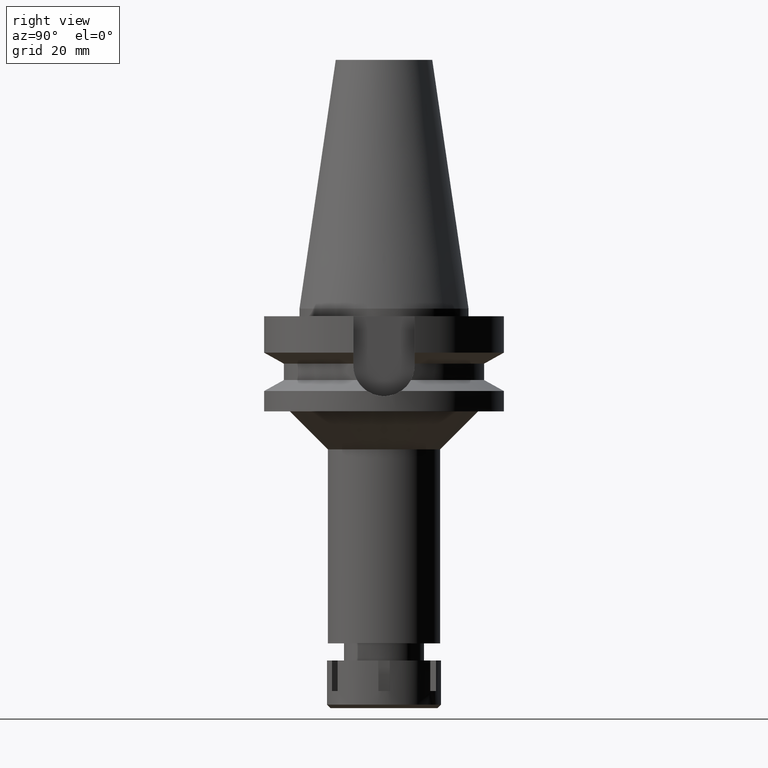
[diagram: clean part render]
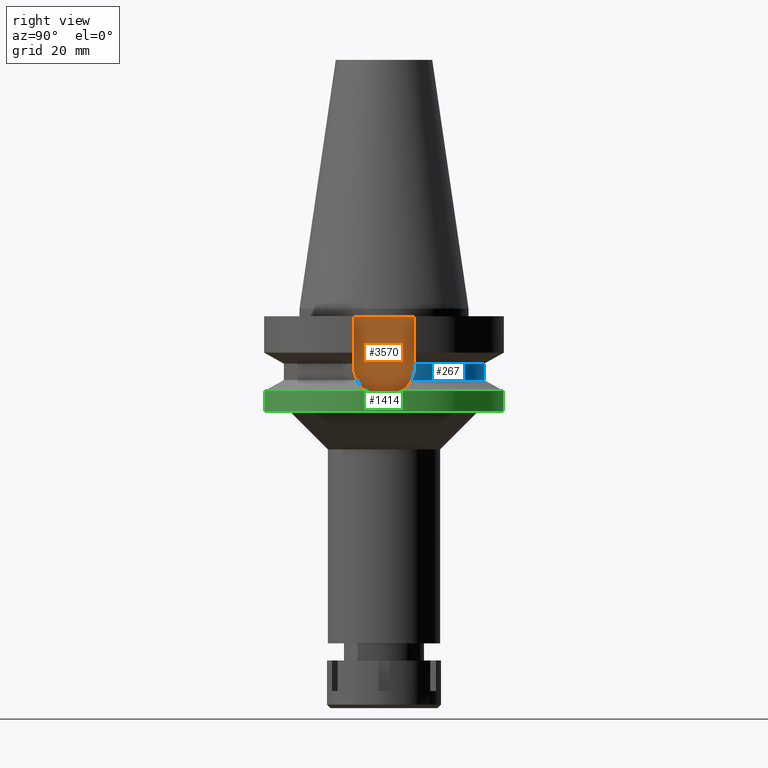
[diagram: same view with three faces highlighted in distinct colors, each labeled with its STEP entity id]
A machine part, right view with three faces highlighted in distinct colors.
Their STEP definitions:

[orange] entity #3570 — the highlighted planar face has unit normal (1, 0, 0).
#12 = EDGE_CURVE ( 'NONE', #867, #642, #2230, .T. ) ;
#53 = VECTOR ( 'NONE', #2480, 1000.000000000000000 ) ;
#88 = CARTESIAN_POINT ( 'NONE',  ( 22.50000000000000000, -8.050000000000000711, -14.94999999999999929 ) ) ;
#299 = LINE ( 'NONE', #807, #348 ) ;
#318 = VERTEX_POINT ( 'NONE', #634 ) ;
#348 = VECTOR ( 'NONE', #1065, 1000.000000000000000 ) ;
#351 = ORIENTED_EDGE ( 'NONE', *, *, #12, .F. ) ;
#498 = ORIENTED_EDGE ( 'NONE', *, *, #3123, .F. ) ;
#528 = EDGE_CURVE ( 'NONE', #642, #318, #2919, .T. ) ;
#634 = CARTESIAN_POINT ( 'NONE',  ( 22.50000000000000000, -8.050000000000000711, -2.000000000000000000 ) ) ;
#642 = VERTEX_POINT ( 'NONE', #88 ) ;
#690 = PLANE ( 'NONE',  #992 ) ;
#807 = CARTESIAN_POINT ( 'NONE',  ( 22.50000000000000000, 8.050000000000000711, -2.000000000000000000 ) ) ;
#867 = VERTEX_POINT ( 'NONE', #1381 ) ;
#992 = AXIS2_PLACEMENT_3D ( 'NONE', #1816, #2940, #1546 ) ;
#1065 = DIRECTION ( 'NONE',  ( 0.0000000000000000000, -1.000000000000000000, 0.0000000000000000000 ) ) ;
#1204 = DIRECTION ( 'NONE',  ( 0.0000000000000000000, 0.0000000000000000000, 1.000000000000000000 ) ) ;
#1299 = VECTOR ( 'NONE', #1204, 1000.000000000000000 ) ;
#1381 = CARTESIAN_POINT ( 'NONE',  ( 22.50000000000000000, 8.050000000000000711, -14.94999999999999929 ) ) ;
#1546 = DIRECTION ( 'NONE',  ( 0.0000000000000000000, 1.000000000000000000, 0.0000000000000000000 ) ) ;
#1573 = ORIENTED_EDGE ( 'NONE', *, *, #528, .F. ) ;
#1801 = VERTEX_POINT ( 'NONE', #3059 ) ;
#1816 = CARTESIAN_POINT ( 'NONE',  ( 22.50000000000000000, 0.0000000000000000000, 0.0000000000000000000 ) ) ;
#1955 = CARTESIAN_POINT ( 'NONE',  ( 22.50000000000000000, 8.050000000000000711, -2.000000000000000000 ) ) ;
#2230 = CIRCLE ( 'NONE', #3127, 8.050000000000000711 ) ;
#2480 = DIRECTION ( 'NONE',  ( 0.0000000000000000000, 0.0000000000000000000, -1.000000000000000000 ) ) ;
#2542 = DIRECTION ( 'NONE',  ( -1.000000000000000000, 0.0000000000000000000, 0.0000000000000000000 ) ) ;
#2631 = EDGE_CURVE ( 'NONE', #1801, #318, #299, .T. ) ;
#2754 = EDGE_LOOP ( 'NONE', ( #1573, #351, #498, #2992 ) ) ;
#2813 = CARTESIAN_POINT ( 'NONE',  ( 22.50000000000000000, 0.0000000000000000000, -14.94999999999999929 ) ) ;
#2919 = LINE ( 'NONE', #3198, #1299 ) ;
#2940 = DIRECTION ( 'NONE',  ( 1.000000000000000000, 0.0000000000000000000, 0.0000000000000000000 ) ) ;
#2992 = ORIENTED_EDGE ( 'NONE', *, *, #2631, .T. ) ;
#3059 = CARTESIAN_POINT ( 'NONE',  ( 22.50000000000000000, 8.050000000000000711, -2.000000000000000000 ) ) ;
#3123 = EDGE_CURVE ( 'NONE', #1801, #867, #3312, .T. ) ;
#3127 = AXIS2_PLACEMENT_3D ( 'NONE', #2813, #2542, #3390 ) ;
#3198 = CARTESIAN_POINT ( 'NONE',  ( 22.50000000000000000, -8.050000000000000711, -14.94999999999999929 ) ) ;
#3312 = LINE ( 'NONE', #1955, #53 ) ;
#3390 = DIRECTION ( 'NONE',  ( 0.0000000000000000000, 1.000000000000000000, 0.0000000000000000000 ) ) ;
#3566 = FACE_OUTER_BOUND ( 'NONE', #2754, .T. ) ;
#3570 = ADVANCED_FACE ( 'NONE', ( #3566 ), #690, .T. ) ;

[blue] entity #267 — the highlighted cylindrical surface (partial cylindrical patch) has radius 26.5 mm, axis along (0, 0, -1).
#39 = CARTESIAN_POINT ( 'NONE',  ( 25.48480653792046624, 7.266729367422243513, -18.43213561436577308 ) ) ;
#45 = CARTESIAN_POINT ( 'NONE',  ( 0.0000000000000000000, 2.125619449279999982E-14, 73.56999999999999318 ) ) ;
#51 = AXIS2_PLACEMENT_3D ( 'NONE', #2305, #358, #2324 ) ;
#267 = ADVANCED_FACE ( 'NONE', ( #3119 ), #323, .T. ) ;
#278 = CARTESIAN_POINT ( 'NONE',  ( 25.24772266958000344, 8.050000000000000711, -14.94999999999999929 ) ) ;
#323 = CYLINDRICAL_SURFACE ( 'NONE', #2364, 26.50000000000000000 ) ;
#337 = CARTESIAN_POINT ( 'NONE',  ( -25.30215890781839860, 7.877570599496780623, -16.61088255778458844 ) ) ;
#355 = CARTESIAN_POINT ( 'NONE',  ( -25.32122245610151978, 7.815962707354739969, -16.87706809355950455 ) ) ;
#358 = DIRECTION ( 'NONE',  ( 0.0000000000000000000, 0.0000000000000000000, 1.000000000000000000 ) ) ;
#373 = VERTEX_POINT ( 'NONE', #3339 ) ;
#376 = CARTESIAN_POINT ( 'NONE',  ( -25.53175183775000079, 7.097862220092999941, -18.74774300138999905 ) ) ;
#389 = CARTESIAN_POINT ( 'NONE',  ( -25.31652402624242981, 7.831177078178416906, -16.81429685341538516 ) ) ;
#541 = EDGE_CURVE ( 'NONE', #373, #3369, #2864, .T. ) ;
#564 = ORIENTED_EDGE ( 'NONE', *, *, #1587, .F. ) ;
#581 = CARTESIAN_POINT ( 'NONE',  ( -25.24772266958000344, 8.050000000000000711, -14.94999999999999929 ) ) ;
#605 = CARTESIAN_POINT ( 'NONE',  ( -25.24772266958000344, 8.050000000000000711, -14.94999999999999929 ) ) ;
#610 = DIRECTION ( 'NONE',  ( -1.015526327460011900E-06, -3.185061107252040006E-06, -0.9999999999944120255 ) ) ;
#623 = CARTESIAN_POINT ( 'NONE',  ( -25.25396625246038695, 8.030896711159567047, -15.59378553532208755 ) ) ;
#626 = CARTESIAN_POINT ( 'NONE',  ( 25.44390410195637742, 7.408324269918076688, -18.11690676764972352 ) ) ;
#647 = CARTESIAN_POINT ( 'NONE',  ( 25.33288843118665312, 7.778112047386424699, -17.02510900864709598 ) ) ;
#705 = DIRECTION ( 'NONE',  ( 2.937377103435145477E-06, -9.212686868436449096E-06, 0.9999999999532491746 ) ) ;
#719 = CARTESIAN_POINT ( 'NONE',  ( 25.24772266958000344, 8.050000000000000711, -14.94999999999999929 ) ) ;
#788 = ORIENTED_EDGE ( 'NONE', *, *, #541, .F. ) ;
#922 = CARTESIAN_POINT ( 'NONE',  ( -25.31954826170012751, 7.821386849067262226, -16.85495274079940486 ) ) ;
#1002 = EDGE_CURVE ( 'NONE', #3369, #2240, #2927, .T. ) ;
#1096 = AXIS2_PLACEMENT_3D ( 'NONE', #2029, #1205, #1243 ) ;
#1165 = DIRECTION ( 'NONE',  ( 0.0000000000000000000, 0.0000000000000000000, -1.000000000000000000 ) ) ;
#1184 = VECTOR ( 'NONE', #610, 1000.000000000000000 ) ;
#1205 = DIRECTION ( 'NONE',  ( 0.0000000000000000000, 0.0000000000000000000, -1.000000000000000000 ) ) ;
#1243 = DIRECTION ( 'NONE',  ( -0.9527442516822307583, 0.3037735849057093818, 0.0000000000000000000 ) ) ;
#1275 = DIRECTION ( 'NONE',  ( 0.0000000000000000000, -1.000000000000000000, 0.0000000000000000000 ) ) ;
#1325 = LINE ( 'NONE', #1845, #2613 ) ;
#1331 = CIRCLE ( 'NONE', #1096, 26.50000000000000711 ) ;
#1403 = CARTESIAN_POINT ( 'NONE',  ( 25.24772413154000006, 8.049995414772000757, -14.45229203572999843 ) ) ;
#1437 = B_SPLINE_CURVE_WITH_KNOTS ( 'NONE', 3,
 ( #2564, #39, #626, #1755, #2880, #3459, #3176, #647, #3260, #2429, #2145, #1600, #2163, #719 ),
 .UNSPECIFIED., .F., .F.,
 ( 4, 2, 2, 1, 1, 2, 2, 4 ),
 ( 0.0000000000000000000, 0.2500000000000011657, 0.3750000000000028311, 0.4375000000000037748, 0.4687500000000027756, 0.4843750000000024425, 0.5000000000000019984, 1.000000000000000000 ),
 .UNSPECIFIED. ) ;
#1445 = ORIENTED_EDGE ( 'NONE', *, *, #2359, .T. ) ;
#1464 = CARTESIAN_POINT ( 'NONE',  ( -25.27269700110156236, 7.971767412699268363, -16.08147680843536520 ) ) ;
#1587 = EDGE_CURVE ( 'NONE', #2704, #2652, #1325, .T. ) ;
#1600 = CARTESIAN_POINT ( 'NONE',  ( 25.27267991477270215, 7.973333693868347005, -16.24500092433180498 ) ) ;
#1755 = CARTESIAN_POINT ( 'NONE',  ( 25.39161474380841099, 7.584925632688388042, -17.65165132602217213 ) ) ;
#1845 = CARTESIAN_POINT ( 'NONE',  ( 25.24772266958000344, 8.050000000000000711, -14.94999999999999929 ) ) ;
#1916 = EDGE_CURVE ( 'NONE', #373, #2652, #1331, .T. ) ;
#2029 = CARTESIAN_POINT ( 'NONE',  ( 0.0000000000000000000, 1.065333950388000029E-14, -14.45225699861000024 ) ) ;
#2038 = CARTESIAN_POINT ( 'NONE',  ( 25.53175183775000079, 7.097862220092999941, -18.74774300138999905 ) ) ;
#2063 = CARTESIAN_POINT ( 'NONE',  ( -25.43789037939440334, 7.435491690444283819, -18.11672414067871273 ) ) ;
#2145 = CARTESIAN_POINT ( 'NONE',  ( 25.32415423298265722, 7.806459850231466824, -16.91522840168126152 ) ) ;
#2163 = CARTESIAN_POINT ( 'NONE',  ( 25.24772266958000344, 8.049999999999997158, -15.58981081119148193 ) ) ;
#2240 = VERTEX_POINT ( 'NONE', #3317 ) ;
#2305 = CARTESIAN_POINT ( 'NONE',  ( 0.0000000000000000000, 0.0000000000000000000, -18.74774300138999905 ) ) ;
#2323 = CARTESIAN_POINT ( 'NONE',  ( -25.28050147970205330, 7.946982733722296466, -16.24437200643366097 ) ) ;
#2324 = DIRECTION ( 'NONE',  ( 0.0000000000000000000, 1.000000000000000000, 0.0000000000000000000 ) ) ;
#2359 = EDGE_CURVE ( 'NONE', #3350, #2240, #2746, .T. ) ;
#2364 = AXIS2_PLACEMENT_3D ( 'NONE', #45, #1165, #1275 ) ;
#2429 = CARTESIAN_POINT ( 'NONE',  ( 25.32546474064105979, 7.802209548897429237, -16.93201787082077203 ) ) ;
#2564 = CARTESIAN_POINT ( 'NONE',  ( 25.53175183775000079, 7.097862220092999941, -18.74774300138999905 ) ) ;
#2613 = VECTOR ( 'NONE', #705, 1000.000000000000114 ) ;
#2621 = ORIENTED_EDGE ( 'NONE', *, *, #2868, .F. ) ;
#2652 = VERTEX_POINT ( 'NONE', #1403 ) ;
#2704 = VERTEX_POINT ( 'NONE', #278 ) ;
#2746 = CIRCLE ( 'NONE', #51, 26.50000000000000000 ) ;
#2791 = ORIENTED_EDGE ( 'NONE', *, *, #1002, .F. ) ;
#2864 = LINE ( 'NONE', #3142, #1184 ) ;
#2868 = EDGE_CURVE ( 'NONE', #3350, #2704, #1437, .T. ) ;
#2876 = CARTESIAN_POINT ( 'NONE',  ( -25.29454954118293486, 7.902007388337063176, -16.48871296866783354 ) ) ;
#2880 = CARTESIAN_POINT ( 'NONE',  ( 25.37569567372544910, 7.637836187999782922, -17.49781209657168191 ) ) ;
#2927 = B_SPLINE_CURVE_WITH_KNOTS ( 'NONE', 3,
 ( #605, #3156, #623, #1464, #2323, #2876, #337, #3456, #389, #922, #355, #3473, #2063, #376 ),
 .UNSPECIFIED., .F., .F.,
 ( 4, 2, 2, 1, 1, 2, 2, 4 ),
 ( 0.0000000000000000000, 0.2499999999999942268, 0.3749999999999912292, 0.4374999999999910072, 0.4687499999999909517, 0.4843749999999907851, 0.4999999999999906741, 1.000000000000000000 ),
 .UNSPECIFIED. ) ;
#2990 = EDGE_LOOP ( 'NONE', ( #3574, #564, #2621, #1445, #2791, #788 ) ) ;
#3119 = FACE_OUTER_BOUND ( 'NONE', #2990, .T. ) ;
#3142 = CARTESIAN_POINT ( 'NONE',  ( -25.24772216410000070, 8.050001585380000435, -14.45224488490999981 ) ) ;
#3156 = CARTESIAN_POINT ( 'NONE',  ( -25.24772266958000699, 8.050000000000018474, -15.27000344023669420 ) ) ;
#3176 = CARTESIAN_POINT ( 'NONE',  ( 25.34384339545047737, 7.742469616379023201, -17.15619314850085431 ) ) ;
#3260 = CARTESIAN_POINT ( 'NONE',  ( 25.32840589093493122, 7.792665650289850809, -16.96921537928767165 ) ) ;
#3317 = CARTESIAN_POINT ( 'NONE',  ( -25.53175183775000079, 7.097862220092999941, -18.74774300138999905 ) ) ;
#3339 = CARTESIAN_POINT ( 'NONE',  ( -25.24772216410000070, 8.050001585380000435, -14.45224488490999981 ) ) ;
#3350 = VERTEX_POINT ( 'NONE', #2038 ) ;
#3369 = VERTEX_POINT ( 'NONE', #581 ) ;
#3456 = CARTESIAN_POINT ( 'NONE',  ( -25.31206084004277557, 7.845614529398870829, -16.75329855851926908 ) ) ;
#3459 = CARTESIAN_POINT ( 'NONE',  ( 25.35408314255054663, 7.708964442631086378, -17.26963666352914117 ) ) ;
#3473 = CARTESIAN_POINT ( 'NONE',  ( -25.36818832152595959, 7.663695285297998261, -17.48840541843554419 ) ) ;
#3574 = ORIENTED_EDGE ( 'NONE', *, *, #1916, .T. ) ;

[green] entity #1414 — the highlighted cylindrical surface (partial cylindrical patch) has radius 31.5 mm, axis along (0, 0, -1).
#10 = EDGE_CURVE ( 'NONE', #954, #3477, #525, .T. ) ;
#81 = ORIENTED_EDGE ( 'NONE', *, *, #854, .F. ) ;
#218 = CARTESIAN_POINT ( 'NONE',  ( 31.41519654756640278, 2.308329250101830432, -22.66195675239377039 ) ) ;
#272 = DIRECTION ( 'NONE',  ( 0.9898094849552905306, -0.1423979757318985240, 0.0000000000000000000 ) ) ;
#290 = CARTESIAN_POINT ( 'NONE',  ( 31.17899877608999759, 4.485536235554000051, -21.63449434733000132 ) ) ;
#295 = CARTESIAN_POINT ( 'NONE',  ( 31.47113333814916558, 1.356640495605542007, -22.88731189953729128 ) ) ;
#297 = VERTEX_POINT ( 'NONE', #1019 ) ;
#309 = FACE_OUTER_BOUND ( 'NONE', #2872, .T. ) ;
#396 = EDGE_CURVE ( 'NONE', #3477, #2075, #3400, .T. ) ;
#412 = AXIS2_PLACEMENT_3D ( 'NONE', #906, #1708, #272 ) ;
#482 = VERTEX_POINT ( 'NONE', #1966 ) ;
#504 = CARTESIAN_POINT ( 'NONE',  ( 31.40782472142544890, -2.406637570769966761, -22.63189169568958548 ) ) ;
#517 = CARTESIAN_POINT ( 'NONE',  ( 0.0000000000000000000, 0.0000000000000000000, -21.63449434733000132 ) ) ;
#525 = CIRCLE ( 'NONE', #412, 31.50000000000001421 ) ;
#546 = CARTESIAN_POINT ( 'NONE',  ( 31.37855930989746156, -2.761990093287100212, -22.51192666843388324 ) ) ;
#561 = CARTESIAN_POINT ( 'NONE',  ( 31.41418307691818512, 2.322078179483369365, -22.65782554032321983 ) ) ;
#785 = ORIENTED_EDGE ( 'NONE', *, *, #817, .F. ) ;
#786 = CARTESIAN_POINT ( 'NONE',  ( 31.27811616779987247, -3.746663409866644923, -22.08609477308995750 ) ) ;
#803 = CARTESIAN_POINT ( 'NONE',  ( 31.43707934141286842, 1.991785373662814385, -22.75083979999427086 ) ) ;
#817 = EDGE_CURVE ( 'NONE', #954, #482, #2667, .T. ) ;
#854 = EDGE_CURVE ( 'NONE', #482, #3155, #2438, .T. ) ;
#856 = DIRECTION ( 'NONE',  ( 0.0000000000000000000, -1.105773104655000034E-13, -1.000000000000000000 ) ) ;
#880 = DIRECTION ( 'NONE',  ( 0.0000000000000000000, -1.000000000000000000, 0.0000000000000000000 ) ) ;
#886 = VERTEX_POINT ( 'NONE', #1094 ) ;
#906 = CARTESIAN_POINT ( 'NONE',  ( 0.0000000000000000000, 0.0000000000000000000, -21.63449434733000132 ) ) ;
#954 = VERTEX_POINT ( 'NONE', #3393 ) ;
#983 = CARTESIAN_POINT ( 'NONE',  ( 0.0000000000000000000, -31.50000000000000000, -21.63449434733000132 ) ) ;
#1019 = CARTESIAN_POINT ( 'NONE',  ( 0.0000000000000000000, 31.50000000000000000, -21.63449434733000132 ) ) ;
#1043 = ORIENTED_EDGE ( 'NONE', *, *, #10, .T. ) ;
#1060 = CARTESIAN_POINT ( 'NONE',  ( 31.33671814116611287, -3.204274407353942866, -22.33747821328194405 ) ) ;
#1076 = CARTESIAN_POINT ( 'NONE',  ( 31.41697254242929205, 2.284015593790098997, -22.66919255136125244 ) ) ;
#1094 = CARTESIAN_POINT ( 'NONE',  ( 0.0000000000000000000, 31.50000000000000000, -27.00000000000000000 ) ) ;
#1366 = CARTESIAN_POINT ( 'NONE',  ( 31.41961539192766040, 2.247536052679425023, -22.67995511561028721 ) ) ;
#1414 = ADVANCED_FACE ( 'NONE', ( #309 ), #2273, .T. ) ;
#1425 = CARTESIAN_POINT ( 'NONE',  ( 31.49278356123979350, 0.7711873033137145450, -22.97267690005150342 ) ) ;
#1434 = CARTESIAN_POINT ( 'NONE',  ( 0.0000000000000000000, 2.125619449279999982E-14, -27.00000000000000000 ) ) ;
#1473 = DIRECTION ( 'NONE',  ( 0.0000000000000000000, 0.0000000000000000000, -1.000000000000000000 ) ) ;
#1532 = CIRCLE ( 'NONE', #2352, 31.50000000000000000 ) ;
#1583 = EDGE_CURVE ( 'NONE', #297, #886, #1606, .T. ) ;
#1590 = CARTESIAN_POINT ( 'NONE',  ( 0.0000000000000000000, 31.50000000000000000, -21.63449434733000132 ) ) ;
#1606 = LINE ( 'NONE', #1590, #3500 ) ;
#1616 = CARTESIAN_POINT ( 'NONE',  ( 31.41023747458456583, -2.374835805079123840, -22.64173436499367043 ) ) ;
#1635 = CARTESIAN_POINT ( 'NONE',  ( 31.50000030226999925, -0.7652255573043680315, -23.00000000000000000 ) ) ;
#1659 = CARTESIAN_POINT ( 'NONE',  ( 31.46211241186140484, 1.552211430492609123, -22.85146869859348229 ) ) ;
#1708 = DIRECTION ( 'NONE',  ( 0.0000000000000000000, 0.0000000000000000000, -1.000000000000000000 ) ) ;
#1825 = CARTESIAN_POINT ( 'NONE',  ( 0.0000000000000000000, -31.50000000000000000, -27.00000000000000000 ) ) ;
#1847 = EDGE_CURVE ( 'NONE', #2075, #886, #2210, .T. ) ;
#1888 = ORIENTED_EDGE ( 'NONE', *, *, #1583, .F. ) ;
#1894 = CARTESIAN_POINT ( 'NONE',  ( 31.17899877608999759, -4.485536235554000051, -21.63449434733000132 ) ) ;
#1908 = CARTESIAN_POINT ( 'NONE',  ( 31.40205153632907198, -2.481143929156545802, -22.60832449611487860 ) ) ;
#1925 = CARTESIAN_POINT ( 'NONE',  ( 31.17899877608999759, 4.485536235554000051, -21.63449434733000132 ) ) ;
#1944 = CARTESIAN_POINT ( 'NONE',  ( 31.36324472122398177, 3.008186403156279720, -22.45010119750621413 ) ) ;
#1959 = CARTESIAN_POINT ( 'NONE',  ( 31.50000030227000636, 0.3826090916207249282, -23.00000000000000355 ) ) ;
#1966 = CARTESIAN_POINT ( 'NONE',  ( 31.50000030226999570, 4.149894552994000121E-14, -23.00000138148999795 ) ) ;
#2075 = VERTEX_POINT ( 'NONE', #1825 ) ;
#2083 = DIRECTION ( 'NONE',  ( 0.0000000000000000000, -1.000000000000000000, 0.0000000000000000000 ) ) ;
#2184 = CARTESIAN_POINT ( 'NONE',  ( 31.35450368001973231, -3.025551444174683802, -22.41216023115313050 ) ) ;
#2198 = CARTESIAN_POINT ( 'NONE',  ( 31.28511117661814112, 3.747948078326578614, -22.12944254150467316 ) ) ;
#2210 = CIRCLE ( 'NONE', #2744, 31.50000000000000000 ) ;
#2273 = CYLINDRICAL_SURFACE ( 'NONE', #2372, 31.50000000000000000 ) ;
#2274 = ORIENTED_EDGE ( 'NONE', *, *, #3622, .T. ) ;
#2333 = CARTESIAN_POINT ( 'NONE',  ( 0.0000000000000000000, 2.125619449279999982E-14, 73.56999999999999318 ) ) ;
#2352 = AXIS2_PLACEMENT_3D ( 'NONE', #517, #1473, #3345 ) ;
#2372 = AXIS2_PLACEMENT_3D ( 'NONE', #2333, #3406, #880 ) ;
#2431 = ORIENTED_EDGE ( 'NONE', *, *, #1847, .T. ) ;
#2438 = B_SPLINE_CURVE_WITH_KNOTS ( 'NONE', 3,
 ( #2782, #1959, #1425, #295, #1659, #3617, #803, #3379, #1366, #1076, #218, #561, #1944, #2198, #1925 ),
 .UNSPECIFIED., .F., .F.,
 ( 4, 2, 2, 1, 1, 1, 2, 2, 4 ),
 ( 0.0000000000000000000, 0.2500000000000014433, 0.3750000000000021649, 0.4375000000000022204, 0.4687500000000017764, 0.4843750000000013323, 0.4921875000000009992, 0.5000000000000006661, 1.000000000000000000 ),
 .UNSPECIFIED. ) ;
#2520 = CARTESIAN_POINT ( 'NONE',  ( 31.50000030226999570, 4.149894552994000121E-14, -23.00000138148999795 ) ) ;
#2667 = B_SPLINE_CURVE_WITH_KNOTS ( 'NONE', 3,
 ( #1894, #2817, #786, #1060, #2184, #546, #3014, #1908, #504, #1616, #3029, #2738, #3334, #1635, #2520 ),
 .UNSPECIFIED., .F., .F.,
 ( 4, 2, 2, 1, 1, 1, 2, 2, 4 ),
 ( 0.0000000000000000000, 0.2500000000000025535, 0.3750000000000032752, 0.4375000000000038303, 0.4687500000000041078, 0.4843750000000038858, 0.4921875000000039413, 0.5000000000000038858, 1.000000000000000000 ),
 .UNSPECIFIED. ) ;
#2738 = CARTESIAN_POINT ( 'NONE',  ( 31.41250465254752910, -2.344685119770060222, -22.65098129005091110 ) ) ;
#2744 = AXIS2_PLACEMENT_3D ( 'NONE', #1434, #2845, #2083 ) ;
#2782 = CARTESIAN_POINT ( 'NONE',  ( 31.50000030226999570, 4.149894552994000121E-14, -23.00000138148999795 ) ) ;
#2817 = CARTESIAN_POINT ( 'NONE',  ( 31.23205437648185168, -4.116746326629337815, -21.88196564640763953 ) ) ;
#2845 = DIRECTION ( 'NONE',  ( 0.0000000000000000000, 0.0000000000000000000, 1.000000000000000000 ) ) ;
#2872 = EDGE_LOOP ( 'NONE', ( #1043, #3269, #2431, #1888, #2274, #81, #785 ) ) ;
#2954 = DIRECTION ( 'NONE',  ( 0.0000000000000000000, 1.099151708819000049E-13, -1.000000000000000000 ) ) ;
#3014 = CARTESIAN_POINT ( 'NONE',  ( 31.38993145523567208, -2.631335982978365351, -22.55874663194875041 ) ) ;
#3029 = CARTESIAN_POINT ( 'NONE',  ( 31.41183231690728661, -2.353663757143418689, -22.64823938059995001 ) ) ;
#3129 = VECTOR ( 'NONE', #856, 1000.000000000000000 ) ;
#3155 = VERTEX_POINT ( 'NONE', #290 ) ;
#3269 = ORIENTED_EDGE ( 'NONE', *, *, #396, .T. ) ;
#3334 = CARTESIAN_POINT ( 'NONE',  ( 31.47113575803164309, -1.554964651594184843, -22.89006402809559049 ) ) ;
#3345 = DIRECTION ( 'NONE',  ( 0.0000000000000000000, 1.000000000000000000, 0.0000000000000000000 ) ) ;
#3379 = CARTESIAN_POINT ( 'NONE',  ( 31.42563404118527970, 2.162357063222001496, -22.70443063269420136 ) ) ;
#3393 = CARTESIAN_POINT ( 'NONE',  ( 31.17899877608999759, -4.485536235554000051, -21.63449434733000132 ) ) ;
#3400 = LINE ( 'NONE', #3606, #3129 ) ;
#3406 = DIRECTION ( 'NONE',  ( 0.0000000000000000000, 0.0000000000000000000, -1.000000000000000000 ) ) ;
#3477 = VERTEX_POINT ( 'NONE', #983 ) ;
#3500 = VECTOR ( 'NONE', #2954, 1000.000000000000000 ) ;
#3606 = CARTESIAN_POINT ( 'NONE',  ( 0.0000000000000000000, -31.50000000000000000, -21.63449434733000132 ) ) ;
#3617 = CARTESIAN_POINT ( 'NONE',  ( 31.44587474454343123, 1.845305156296520810, -22.78628520793472845 ) ) ;
#3622 = EDGE_CURVE ( 'NONE', #297, #3155, #1532, .T. ) ;